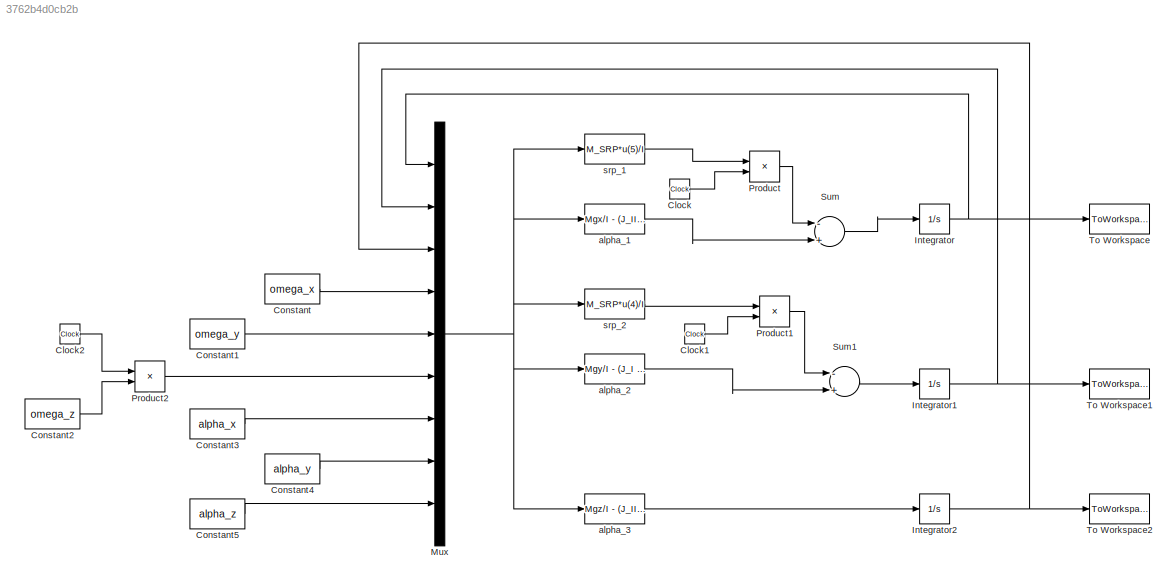
MODEL slx_3762b4d0cb2b
KIND model
CONFIG AbsTol = auto
CONFIG EnableMultiTasking = off
CONFIG FixedStep = dt
CONFIG MaxStep = 10000
CONFIG MinStep = auto
CONFIG RelTol = 1e-3
CONFIG SampleTimeConstraint = Unconstrained
CONFIG Solver = FixedStepAuto
CONFIG SolverName = FixedStepAuto
CONFIG StartTime = 0.0
CONFIG StopTime = t
BLOCK [Clock] Clock
  Decimation = clock_decimation
BLOCK [Clock] Clock1
  Decimation = clock_decimation
BLOCK [Clock] Clock2
  Decimation = clock_decimation
BLOCK [Constant] Constant
  Value = omega_x
BLOCK [Constant] Constant1
  Value = omega_y
BLOCK [Constant] Constant2
  Value = omega_z
BLOCK [Constant] Constant3
  Value = alpha_x
BLOCK [Constant] Constant4
  Value = alpha_y
BLOCK [Constant] Constant5
  Value = alpha_z
BLOCK [Integrator] Integrator
  Ports = [1, 1]
BLOCK [Integrator] Integrator1
  Ports = [1, 1]
BLOCK [Integrator] Integrator2
  Ports = [1, 1]
BLOCK [Mux] Mux
  DisplayOption = bar
  Inputs = 9
  Ports = [9, 1]
BLOCK [Product] Product
  InputSameDT = off
  OutDataTypeStr = Inherit: Inherit via internal rule
  Ports = [2, 1]
  RndMeth = Floor
  SaturateOnIntegerOverflow = off
BLOCK [Product] Product1
  InputSameDT = off
  OutDataTypeStr = Inherit: Inherit via internal rule
  Ports = [2, 1]
  RndMeth = Floor
  SaturateOnIntegerOverflow = off
BLOCK [Product] Product2
  InputSameDT = off
  OutDataTypeStr = Inherit: Inherit via internal rule
  Ports = [2, 1]
  RndMeth = Floor
  SaturateOnIntegerOverflow = off
BLOCK [Sum] Sum
  InputSameDT = off
  Inputs = -+
  OutDataTypeStr = Inherit: Inherit via internal rule
  Ports = [2, 1]
  SaturateOnIntegerOverflow = off
BLOCK [Sum] Sum1
  InputSameDT = off
  Inputs = -+
  OutDataTypeStr = Inherit: Inherit via internal rule
  Ports = [2, 1]
  SaturateOnIntegerOverflow = off
BLOCK [ToWorkspace] To Workspace
  Decimation = vector_decimation
  FixptAsFi = on
  MaxDataPoints = inf
  Ports = [1]
  SampleTime = -1
  Save2DSignal = 2-D array (concatenate along first dimension)
  SaveFormat = Structure With Time
  VariableName = omega_1
BLOCK [ToWorkspace] To Workspace1
  Decimation = vector_decimation
  FixptAsFi = on
  MaxDataPoints = inf
  Ports = [1]
  SampleTime = -1
  Save2DSignal = 2-D array (concatenate along first dimension)
  SaveFormat = Structure With Time
  VariableName = omega_2
BLOCK [ToWorkspace] To Workspace2
  Decimation = vector_decimation
  FixptAsFi = on
  MaxDataPoints = inf
  Ports = [1]
  SampleTime = -1
  Save2DSignal = 2-D array (concatenate along first dimension)
  SaveFormat = Structure With Time
  VariableName = omega_3
BLOCK [Fcn] alpha_1
  Expr = Mgx/I - (J_III - J_II)/I*u(5)*u(6) + u(2)*u(6) - u(3)*u(5) - J_I/I*u(7)
BLOCK [Fcn] alpha_2
  Expr = Mgy/I - (J_I - J_III)/I*u(4)*u(6) + u(3)*u(4) - u(1)*u(6) - J_II/I*u(8)
BLOCK [Fcn] alpha_3
  Expr = Mgz/I - (J_II - J_I)/I*u(4)*u(5) - u(2)*u(4) + u(1)*u(5) - J_III/I*u(9)
BLOCK [Fcn] srp_1 
  Expr = M_SRP*u(5)/I
BLOCK [Fcn] srp_2
  Expr = M_SRP*u(4)/I
LINE Clock1:1 -> Product1:2
LINE Clock2:1 -> Product2:1
LINE Clock:1 -> Product:2
LINE Constant1:1 -> Mux:5
LINE Constant2:1 -> Product2:2
LINE Constant3:1 -> Mux:7
LINE Constant4:1 -> Mux:8
LINE Constant5:1 -> Mux:9
LINE Constant:1 -> Mux:4
NET Integrator1:1 -> Mux:2, To Workspace1:1
NET Integrator2:1 -> Mux:3, To Workspace2:1
NET Integrator:1 -> Mux:1, To Workspace:1
NET Mux:1 -> alpha_1:1, alpha_2:1, alpha_3:1, srp_1 :1, srp_2:1
LINE Product1:1 -> Sum1:1
LINE Product2:1 -> Mux:6
LINE Product:1 -> Sum:1
LINE Sum1:1 -> Integrator1:1
LINE Sum:1 -> Integrator:1
LINE alpha_1:1 -> Sum:2
LINE alpha_2:1 -> Sum1:2
LINE alpha_3:1 -> Integrator2:1
LINE srp_1 :1 -> Product:1
LINE srp_2:1 -> Product1:1
note: NET lines group one-source signal fan-out (src -> all destinations, sorted); 1:1 wires keep LINE
